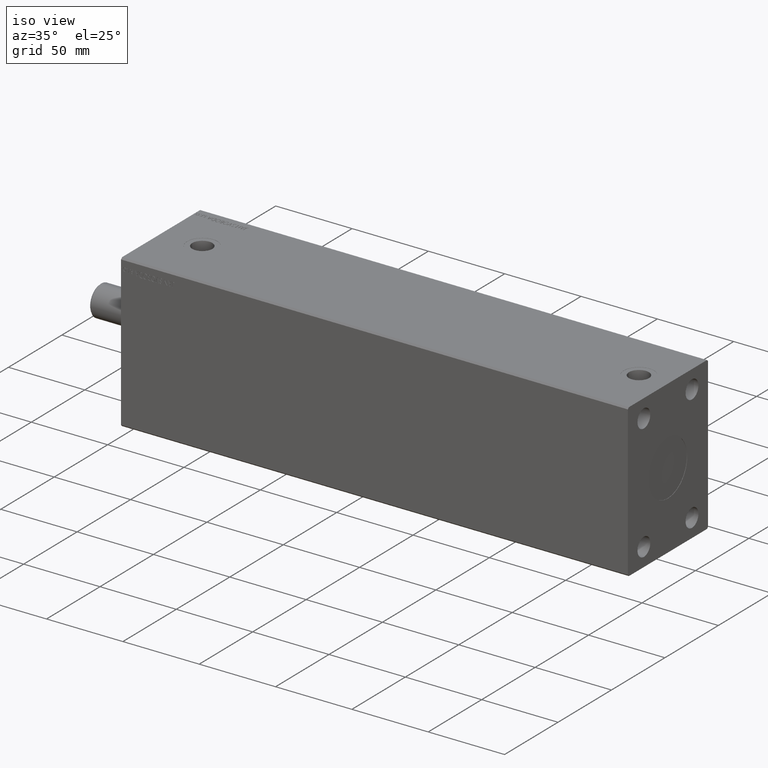
[diagram: clean part render]
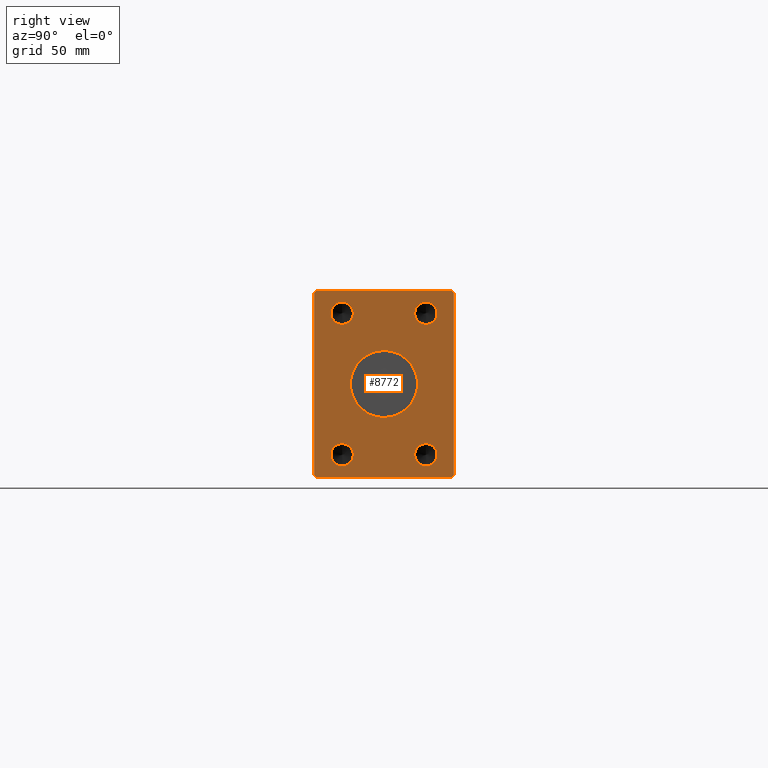
[diagram: tour spotlight — one face highlighted and labeled with its STEP entity id]
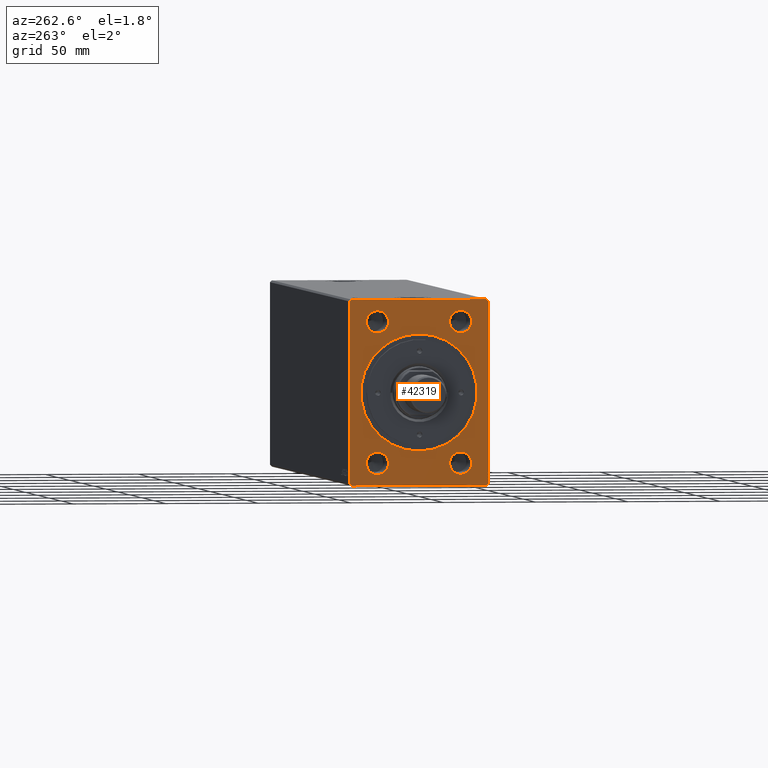
[diagram: tour spotlight — one face highlighted and labeled with its STEP entity id]
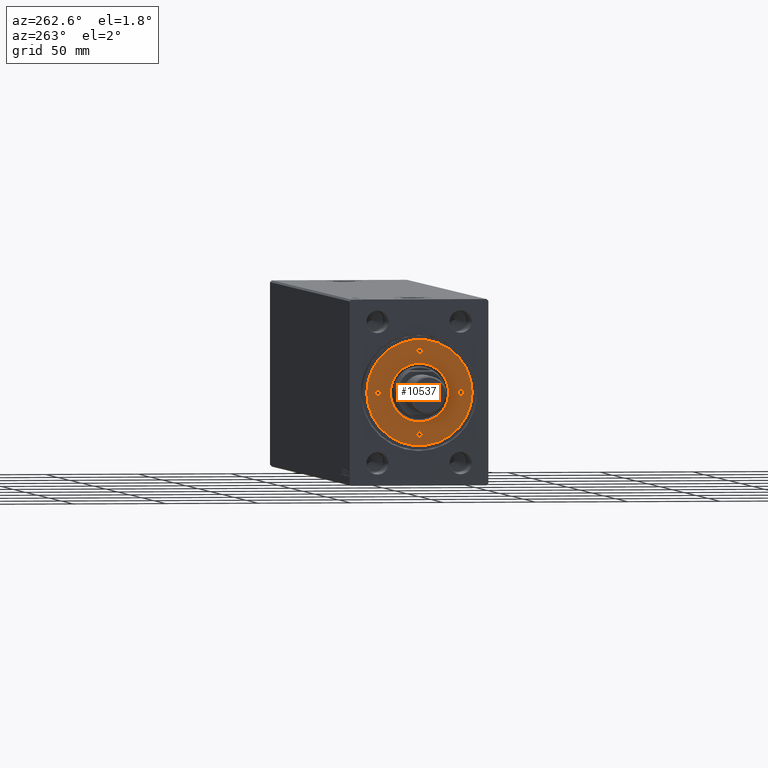
[diagram: tour spotlight — one face highlighted and labeled with its STEP entity id]
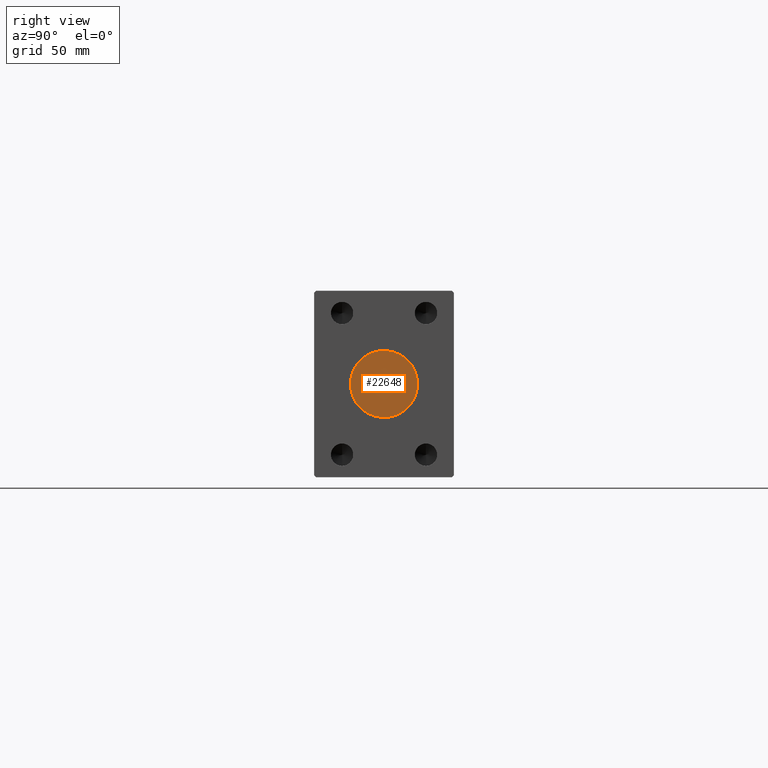
[diagram: tour spotlight — one face highlighted and labeled with its STEP entity id]
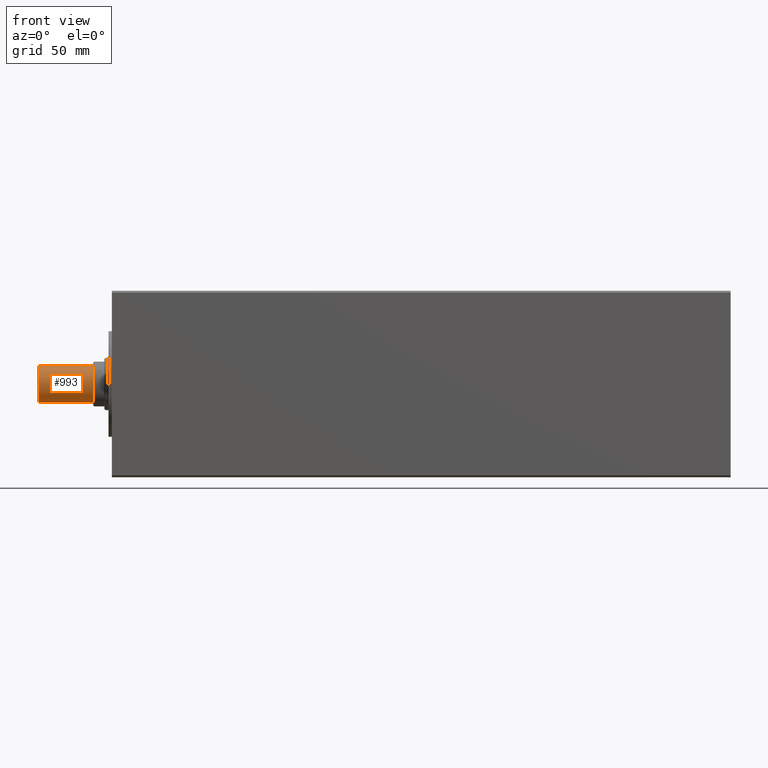
[diagram: tour spotlight — one face highlighted and labeled with its STEP entity id]
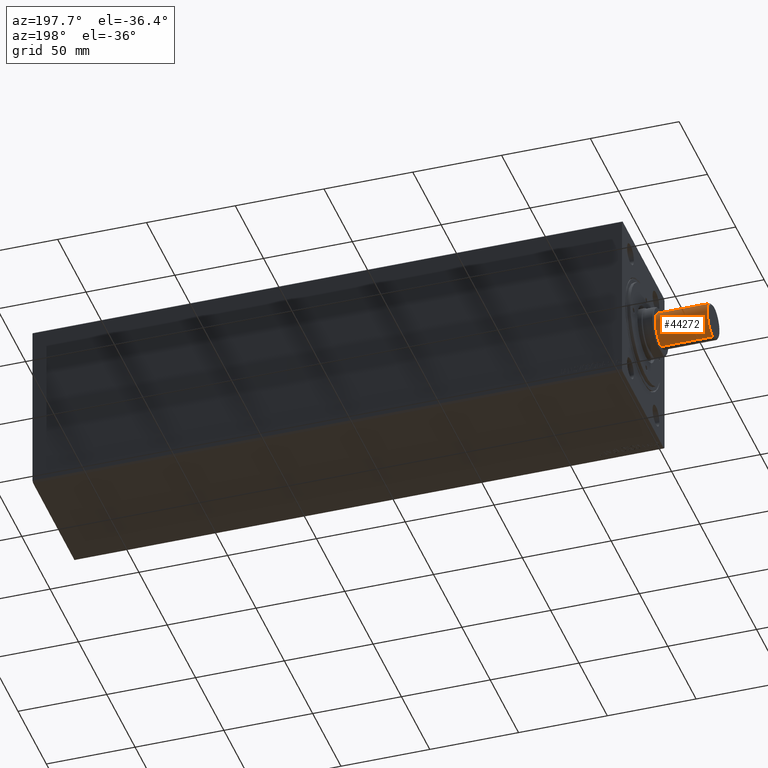
[diagram: tour spotlight — one face highlighted and labeled with its STEP entity id]
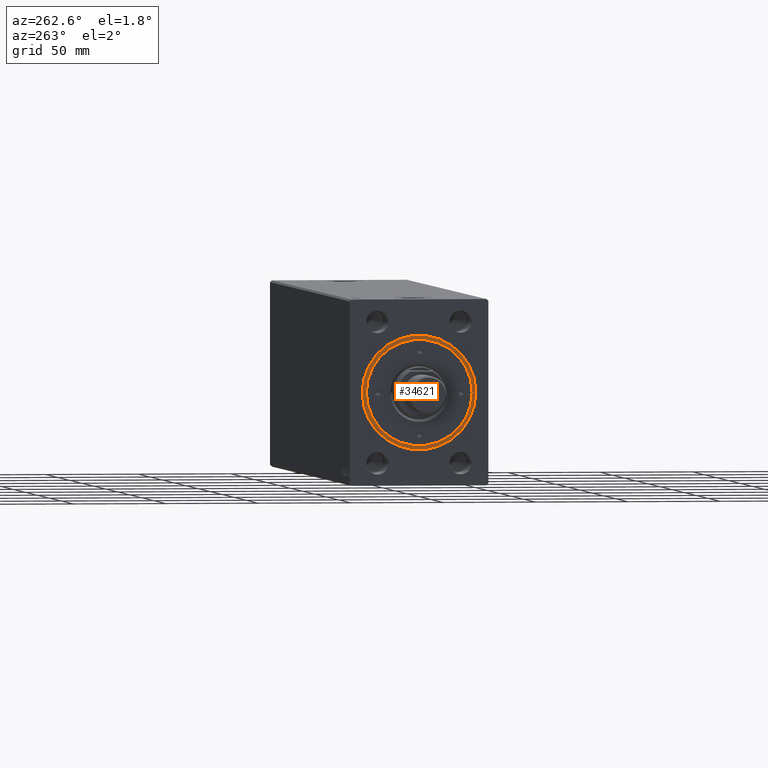
[diagram: tour spotlight — one face highlighted and labeled with its STEP entity id]
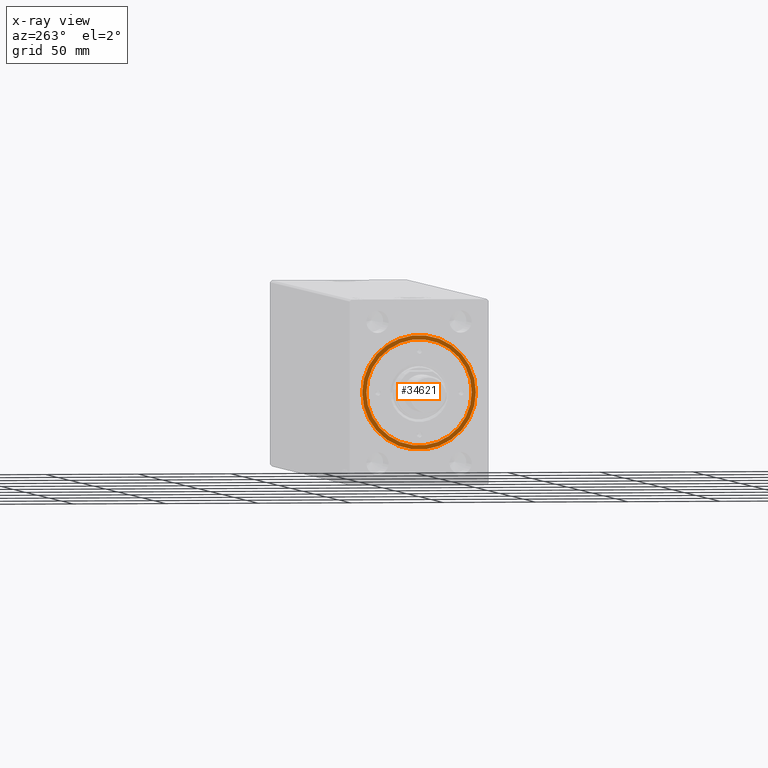
[diagram: x-ray of the same camera — body ghosted, this tour face saturated]
A machine part: a face-by-face anatomy tour. The part has 879 B-rep faces; the first image is the clean iso view, then the 7 largest visible faces are spotlighted one at a time (largest first), each with its STEP entity span.

Face 1 — right view, entity #8772. In plain terms, the highlighted planar face has unit normal (1, 0, 0).
Definition (entity closure, byte-faithful):
#558 = DIRECTION ( 'NONE',  ( 0.000000000000000000, -0.7071067811865474617, -0.7071067811865474617 ) ) ;
#779 = EDGE_CURVE ( 'NONE', #2966, #4572, #15298, .T. ) ;
#835 = CARTESIAN_POINT ( 'NONE',  ( 332.0000000000000000, -22.50000000000000000, 32.00000000000000000 ) ) ;
#1179 = VECTOR ( 'NONE', #7562, 1000.000000000000114 ) ;
#1397 = CIRCLE ( 'NONE', #33618, 18.00000000000000000 ) ;
#1464 = DIRECTION ( 'NONE',  ( 0.000000000000000000, 0.000000000000000000, -1.000000000000000000 ) ) ;
#2029 = CARTESIAN_POINT ( 'NONE',  ( 332.0000000000000000, 37.50000000000000711, -49.00000000000000000 ) ) ;
#2045 = EDGE_CURVE ( 'NONE', #38311, #20236, #17478, .T. ) ;
#2544 = AXIS2_PLACEMENT_3D ( 'NONE', #37457, #24663, #20876 ) ;
#2966 = VERTEX_POINT ( 'NONE', #23134 ) ;
#3005 = VECTOR ( 'NONE', #37088, 1000.000000000000000 ) ;
#3010 = LINE ( 'NONE', #3221, #31453 ) ;
#3162 = CARTESIAN_POINT ( 'NONE',  ( 332.0000000000000000, -22.50000000000000000, -32.00000000000000711 ) ) ;
#3221 = CARTESIAN_POINT ( 'NONE',  ( 332.0000000000000000, 36.50000000000000711, 50.00000000000000000 ) ) ;
#3379 = ORIENTED_EDGE ( 'NONE', *, *, #43029, .T. ) ;
#3412 = FACE_BOUND ( 'NONE', #41078, .T. ) ;
#3633 = DIRECTION ( 'NONE',  ( 0.000000000000000000, 0.000000000000000000, -1.000000000000000000 ) ) ;
#3825 = ORIENTED_EDGE ( 'NONE', *, *, #7319, .T. ) ;
#3857 = EDGE_CURVE ( 'NONE', #30267, #14996, #33307, .T. ) ;
#3928 = CARTESIAN_POINT ( 'NONE',  ( 332.0000000000000000, 0.000000000000000000, 0.000000000000000000 ) ) ;
#3942 = ORIENTED_EDGE ( 'NONE', *, *, #779, .F. ) ;
#3993 = CARTESIAN_POINT ( 'NONE',  ( 332.0000000000000000, 37.50000000000000711, 49.00000000000000000 ) ) ;
#4116 = CARTESIAN_POINT ( 'NONE',  ( 332.0000000000000000, 36.50000000000000711, 50.00000000000000000 ) ) ;
#4572 = VERTEX_POINT ( 'NONE', #7563 ) ;
#4987 = DIRECTION ( 'NONE',  ( 0.000000000000000000, 0.000000000000000000, -1.000000000000000000 ) ) ;
#5064 = CARTESIAN_POINT ( 'NONE',  ( 332.0000000000000000, -22.50000000000000000, 38.00000000000000000 ) ) ;
#5067 = LINE ( 'NONE', #5286, #38441 ) ;
#5130 = AXIS2_PLACEMENT_3D ( 'NONE', #42023, #38231, #27701 ) ;
#5286 = CARTESIAN_POINT ( 'NONE',  ( 332.0000000000000000, -37.50000000000001421, 48.99999999999998579 ) ) ;
#6079 = ORIENTED_EDGE ( 'NONE', *, *, #2045, .F. ) ;
#6180 = DIRECTION ( 'NONE',  ( 0.000000000000000000, 0.000000000000000000, -1.000000000000000000 ) ) ;
#6258 = CARTESIAN_POINT ( 'NONE',  ( 332.0000000000000000, 22.50000000000000000, -38.00000000000000000 ) ) ;
#7319 = EDGE_CURVE ( 'NONE', #15618, #19843, #21242, .T. ) ;
#7387 = ORIENTED_EDGE ( 'NONE', *, *, #9225, .T. ) ;
#7404 = ORIENTED_EDGE ( 'NONE', *, *, #35841, .F. ) ;
#7562 = DIRECTION ( 'NONE',  ( 0.000000000000000000, -0.7071067811865474617, 0.7071067811865474617 ) ) ;
#7563 = CARTESIAN_POINT ( 'NONE',  ( 332.0000000000000000, 0.000000000000000000, -18.00000000000000000 ) ) ;
#8281 = VECTOR ( 'NONE', #39922, 1000.000000000000114 ) ;
#8395 = VERTEX_POINT ( 'NONE', #21865 ) ;
#8704 = AXIS2_PLACEMENT_3D ( 'NONE', #5064, #18719, #23858 ) ;
#8772 = ADVANCED_FACE ( 'NONE', ( #21091, #30742, #3412, #34986, #17493, #31395 ), #13696, .T. ) ;
#8802 = CARTESIAN_POINT ( 'NONE',  ( 332.0000000000000000, 22.50000000000000000, -38.00000000000000000 ) ) ;
#9210 = CIRCLE ( 'NONE', #12787, 5.999999999999998224 ) ;
#9225 = EDGE_CURVE ( 'NONE', #16499, #33193, #5067, .T. ) ;
#10193 = LINE ( 'NONE', #11059, #33685 ) ;
#10246 = EDGE_LOOP ( 'NONE', ( #33572, #18981 ) ) ;
#10298 = CARTESIAN_POINT ( 'NONE',  ( 332.0000000000000000, 22.50000000000000000, -44.00000000000000000 ) ) ;
#10433 = DIRECTION ( 'NONE',  ( 1.000000000000000000, 0.000000000000000000, 0.000000000000000000 ) ) ;
#11059 = CARTESIAN_POINT ( 'NONE',  ( 332.0000000000000000, -36.50000000000001421, 49.99999999999998579 ) ) ;
#11275 = EDGE_CURVE ( 'NONE', #19443, #8395, #9210, .T. ) ;
#11600 = CARTESIAN_POINT ( 'NONE',  ( 332.0000000000000000, 22.50000000000000000, -32.00000000000000000 ) ) ;
#12133 = VERTEX_POINT ( 'NONE', #33611 ) ;
#12787 = AXIS2_PLACEMENT_3D ( 'NONE', #42232, #32592, #1464 ) ;
#12882 = CARTESIAN_POINT ( 'NONE',  ( 332.0000000000000000, -36.50000000000000711, -50.00000000000000000 ) ) ;
#13491 = CIRCLE ( 'NONE', #37923, 5.999999999999998224 ) ;
#13696 = PLANE ( 'NONE',  #17667 ) ;
#14996 = VERTEX_POINT ( 'NONE', #3162 ) ;
#15044 = CARTESIAN_POINT ( 'NONE',  ( 332.0000000000000000, -22.50000000000000000, 38.00000000000000000 ) ) ;
#15273 = EDGE_CURVE ( 'NONE', #8395, #19443, #17757, .T. ) ;
#15298 = CIRCLE ( 'NONE', #20322, 18.00000000000000000 ) ;
#15385 = ORIENTED_EDGE ( 'NONE', *, *, #20569, .T. ) ;
#15618 = VERTEX_POINT ( 'NONE', #18446 ) ;
#15666 = DIRECTION ( 'NONE',  ( 0.000000000000000000, 0.000000000000000000, 1.000000000000000000 ) ) ;
#15711 = LINE ( 'NONE', #23131, #8281 ) ;
#16141 = VERTEX_POINT ( 'NONE', #10298 ) ;
#16252 = VECTOR ( 'NONE', #15666, 1000.000000000000000 ) ;
#16499 = VERTEX_POINT ( 'NONE', #22115 ) ;
#16575 = CIRCLE ( 'NONE', #8704, 5.999999999999998224 ) ;
#17373 = EDGE_LOOP ( 'NONE', ( #6079, #18387 ) ) ;
#17478 = CIRCLE ( 'NONE', #26808, 5.999999999999998224 ) ;
#17493 = FACE_BOUND ( 'NONE', #17373, .T. ) ;
#17667 = AXIS2_PLACEMENT_3D ( 'NONE', #27809, #37458, #3633 ) ;
#17757 = CIRCLE ( 'NONE', #30673, 5.999999999999998224 ) ;
#18367 = ORIENTED_EDGE ( 'NONE', *, *, #11275, .F. ) ;
#18387 = ORIENTED_EDGE ( 'NONE', *, *, #42960, .F. ) ;
#18446 = CARTESIAN_POINT ( 'NONE',  ( 332.0000000000000000, 37.50000000000000711, 49.00000000000000000 ) ) ;
#18719 = DIRECTION ( 'NONE',  ( 1.000000000000000000, -0.000000000000000000, -0.000000000000000000 ) ) ;
#18939 = DIRECTION ( 'NONE',  ( 0.000000000000000000, 0.000000000000000000, -1.000000000000000000 ) ) ;
#18981 = ORIENTED_EDGE ( 'NONE', *, *, #19922, .F. ) ;
#19096 = DIRECTION ( 'NONE',  ( 0.000000000000000000, 0.000000000000000000, -1.000000000000000000 ) ) ;
#19443 = VERTEX_POINT ( 'NONE', #29975 ) ;
#19516 = LINE ( 'NONE', #27123, #30723 ) ;
#19843 = VERTEX_POINT ( 'NONE', #4116 ) ;
#19922 = EDGE_CURVE ( 'NONE', #36786, #16141, #36534, .T. ) ;
#20230 = CARTESIAN_POINT ( 'NONE',  ( 332.0000000000000000, -22.50000000000000000, -44.00000000000000711 ) ) ;
#20236 = VERTEX_POINT ( 'NONE', #43881 ) ;
#20322 = AXIS2_PLACEMENT_3D ( 'NONE', #3928, #28114, #41771 ) ;
#20569 = EDGE_CURVE ( 'NONE', #27847, #12133, #15711, .T. ) ;
#20876 = DIRECTION ( 'NONE',  ( 0.000000000000000000, 0.000000000000000000, -1.000000000000000000 ) ) ;
#21091 = FACE_BOUND ( 'NONE', #26251, .T. ) ;
#21242 = LINE ( 'NONE', #3993, #1179 ) ;
#21865 = CARTESIAN_POINT ( 'NONE',  ( 332.0000000000000000, 22.50000000000000000, 32.00000000000000000 ) ) ;
#22115 = CARTESIAN_POINT ( 'NONE',  ( 332.0000000000000000, -37.50000000000001421, 48.99999999999998579 ) ) ;
#23131 = CARTESIAN_POINT ( 'NONE',  ( 332.0000000000000000, 36.50000000000000711, -50.00000000000000000 ) ) ;
#23134 = CARTESIAN_POINT ( 'NONE',  ( 332.0000000000000000, 2.204364238465235428E-15, 18.00000000000000000 ) ) ;
#23736 = DIRECTION ( 'NONE',  ( 0.000000000000000000, 0.000000000000000000, -1.000000000000000000 ) ) ;
#23858 = DIRECTION ( 'NONE',  ( 0.000000000000000000, 0.000000000000000000, -1.000000000000000000 ) ) ;
#24332 = CARTESIAN_POINT ( 'NONE',  ( 332.0000000000000000, 0.000000000000000000, 0.000000000000000000 ) ) ;
#24441 = CIRCLE ( 'NONE', #5130, 5.999999999999998224 ) ;
#24663 = DIRECTION ( 'NONE',  ( 1.000000000000000000, -0.000000000000000000, -0.000000000000000000 ) ) ;
#25332 = ORIENTED_EDGE ( 'NONE', *, *, #26033, .T. ) ;
#26033 = EDGE_CURVE ( 'NONE', #12133, #15618, #32056, .T. ) ;
#26040 = ORIENTED_EDGE ( 'NONE', *, *, #3857, .F. ) ;
#26251 = EDGE_LOOP ( 'NONE', ( #7404, #3942 ) ) ;
#26808 = AXIS2_PLACEMENT_3D ( 'NONE', #15044, #36513, #4987 ) ;
#27123 = CARTESIAN_POINT ( 'NONE',  ( 332.0000000000000000, -37.50000000000001421, -49.00000000000000000 ) ) ;
#27701 = DIRECTION ( 'NONE',  ( 0.000000000000000000, 0.000000000000000000, -1.000000000000000000 ) ) ;
#27809 = CARTESIAN_POINT ( 'NONE',  ( 332.0000000000000000, 0.000000000000000000, 0.000000000000000000 ) ) ;
#27847 = VERTEX_POINT ( 'NONE', #31952 ) ;
#28114 = DIRECTION ( 'NONE',  ( 1.000000000000000000, 0.000000000000000000, 0.000000000000000000 ) ) ;
#28265 = ORIENTED_EDGE ( 'NONE', *, *, #30694, .T. ) ;
#29938 = CARTESIAN_POINT ( 'NONE',  ( 332.0000000000000000, 22.50000000000000000, 38.00000000000000000 ) ) ;
#29975 = CARTESIAN_POINT ( 'NONE',  ( 332.0000000000000000, 22.50000000000000000, 44.00000000000000000 ) ) ;
#30146 = EDGE_LOOP ( 'NONE', ( #3825, #42976, #42109, #7387, #28265, #3379, #15385, #25332 ) ) ;
#30267 = VERTEX_POINT ( 'NONE', #20230 ) ;
#30454 = DIRECTION ( 'NONE',  ( 1.000000000000000000, -0.000000000000000000, -0.000000000000000000 ) ) ;
#30673 = AXIS2_PLACEMENT_3D ( 'NONE', #29938, #36876, #6180 ) ;
#30694 = EDGE_CURVE ( 'NONE', #33193, #36776, #19516, .T. ) ;
#30723 = VECTOR ( 'NONE', #34079, 1000.000000000000114 ) ;
#30742 = FACE_BOUND ( 'NONE', #31482, .T. ) ;
#31395 = FACE_OUTER_BOUND ( 'NONE', #30146, .T. ) ;
#31453 = VECTOR ( 'NONE', #33706, 1000.000000000000000 ) ;
#31482 = EDGE_LOOP ( 'NONE', ( #37037, #18367 ) ) ;
#31751 = EDGE_CURVE ( 'NONE', #19843, #40843, #3010, .T. ) ;
#31952 = CARTESIAN_POINT ( 'NONE',  ( 332.0000000000000000, 36.50000000000000711, -50.00000000000000000 ) ) ;
#32056 = LINE ( 'NONE', #2029, #16252 ) ;
#32481 = ORIENTED_EDGE ( 'NONE', *, *, #42849, .F. ) ;
#32592 = DIRECTION ( 'NONE',  ( 1.000000000000000000, -0.000000000000000000, -0.000000000000000000 ) ) ;
#32958 = AXIS2_PLACEMENT_3D ( 'NONE', #8802, #36137, #19096 ) ;
#33071 = EDGE_CURVE ( 'NONE', #16141, #36786, #13491, .T. ) ;
#33166 = DIRECTION ( 'NONE',  ( 0.000000000000000000, 0.000000000000000000, -1.000000000000000000 ) ) ;
#33193 = VERTEX_POINT ( 'NONE', #41847 ) ;
#33288 = LINE ( 'NONE', #12882, #3005 ) ;
#33307 = CIRCLE ( 'NONE', #2544, 5.999999999999998224 ) ;
#33572 = ORIENTED_EDGE ( 'NONE', *, *, #33071, .F. ) ;
#33611 = CARTESIAN_POINT ( 'NONE',  ( 332.0000000000000000, 37.50000000000000711, -49.00000000000000000 ) ) ;
#33618 = AXIS2_PLACEMENT_3D ( 'NONE', #24332, #10433, #33166 ) ;
#33685 = VECTOR ( 'NONE', #558, 1000.000000000000114 ) ;
#33706 = DIRECTION ( 'NONE',  ( 0.000000000000000000, -1.000000000000000000, -1.901066822988281457E-16 ) ) ;
#34079 = DIRECTION ( 'NONE',  ( 0.000000000000000000, 0.7071067811865500152, -0.7071067811865451302 ) ) ;
#34986 = FACE_BOUND ( 'NONE', #10246, .T. ) ;
#35349 = CARTESIAN_POINT ( 'NONE',  ( 332.0000000000000000, -36.50000000000001421, 49.99999999999998579 ) ) ;
#35841 = EDGE_CURVE ( 'NONE', #4572, #2966, #1397, .T. ) ;
#36137 = DIRECTION ( 'NONE',  ( 1.000000000000000000, -0.000000000000000000, -0.000000000000000000 ) ) ;
#36513 = DIRECTION ( 'NONE',  ( 1.000000000000000000, -0.000000000000000000, -0.000000000000000000 ) ) ;
#36534 = CIRCLE ( 'NONE', #32958, 5.999999999999998224 ) ;
#36776 = VERTEX_POINT ( 'NONE', #38949 ) ;
#36786 = VERTEX_POINT ( 'NONE', #11600 ) ;
#36876 = DIRECTION ( 'NONE',  ( 1.000000000000000000, -0.000000000000000000, -0.000000000000000000 ) ) ;
#37037 = ORIENTED_EDGE ( 'NONE', *, *, #15273, .F. ) ;
#37088 = DIRECTION ( 'NONE',  ( 0.000000000000000000, 1.000000000000000000, 0.000000000000000000 ) ) ;
#37457 = CARTESIAN_POINT ( 'NONE',  ( 332.0000000000000000, -22.50000000000000000, -38.00000000000000711 ) ) ;
#37458 = DIRECTION ( 'NONE',  ( 1.000000000000000000, 0.000000000000000000, 0.000000000000000000 ) ) ;
#37923 = AXIS2_PLACEMENT_3D ( 'NONE', #6258, #30454, #23736 ) ;
#38231 = DIRECTION ( 'NONE',  ( 1.000000000000000000, -0.000000000000000000, -0.000000000000000000 ) ) ;
#38311 = VERTEX_POINT ( 'NONE', #835 ) ;
#38441 = VECTOR ( 'NONE', #18939, 1000.000000000000000 ) ;
#38568 = EDGE_CURVE ( 'NONE', #40843, #16499, #10193, .T. ) ;
#38949 = CARTESIAN_POINT ( 'NONE',  ( 332.0000000000000000, -36.50000000000000711, -50.00000000000000000 ) ) ;
#39922 = DIRECTION ( 'NONE',  ( 0.000000000000000000, 0.7071067811865474617, 0.7071067811865474617 ) ) ;
#40843 = VERTEX_POINT ( 'NONE', #35349 ) ;
#41078 = EDGE_LOOP ( 'NONE', ( #26040, #32481 ) ) ;
#41771 = DIRECTION ( 'NONE',  ( 0.000000000000000000, 0.000000000000000000, -1.000000000000000000 ) ) ;
#41847 = CARTESIAN_POINT ( 'NONE',  ( 332.0000000000000000, -37.50000000000001421, -49.00000000000000000 ) ) ;
#42023 = CARTESIAN_POINT ( 'NONE',  ( 332.0000000000000000, -22.50000000000000000, -38.00000000000000711 ) ) ;
#42109 = ORIENTED_EDGE ( 'NONE', *, *, #38568, .T. ) ;
#42232 = CARTESIAN_POINT ( 'NONE',  ( 332.0000000000000000, 22.50000000000000000, 38.00000000000000000 ) ) ;
#42849 = EDGE_CURVE ( 'NONE', #14996, #30267, #24441, .T. ) ;
#42960 = EDGE_CURVE ( 'NONE', #20236, #38311, #16575, .T. ) ;
#42976 = ORIENTED_EDGE ( 'NONE', *, *, #31751, .T. ) ;
#43029 = EDGE_CURVE ( 'NONE', #36776, #27847, #33288, .T. ) ;
#43881 = CARTESIAN_POINT ( 'NONE',  ( 332.0000000000000000, -22.50000000000000000, 44.00000000000000000 ) ) ;

Face 2 — auxiliary view, entity #42319. In plain terms, the highlighted planar face has unit normal (1, 0, 0).
Definition (entity closure, byte-faithful):
#27 = EDGE_CURVE ( 'NONE', #21029, #11809, #895, .T. ) ;
#171 = VERTEX_POINT ( 'NONE', #32694 ) ;
#531 = FACE_BOUND ( 'NONE', #42029, .T. ) ;
#895 = LINE ( 'NONE', #28008, #17451 ) ;
#973 = VERTEX_POINT ( 'NONE', #16430 ) ;
#1718 = LINE ( 'NONE', #42927, #15419 ) ;
#1759 = CARTESIAN_POINT ( 'NONE',  ( 0.000000000000000000, 37.50000000000000711, 49.00000000000000000 ) ) ;
#1984 = LINE ( 'NONE', #25503, #36357 ) ;
#2692 = AXIS2_PLACEMENT_3D ( 'NONE', #24217, #34752, #4050 ) ;
#3191 = CARTESIAN_POINT ( 'NONE',  ( 0.000000000000000000, 37.50000000000000711, 49.00000000000000000 ) ) ;
#3340 = EDGE_CURVE ( 'NONE', #39808, #38376, #14648, .T. ) ;
#3582 = DIRECTION ( 'NONE',  ( -1.000000000000000000, -0.000000000000000000, -0.000000000000000000 ) ) ;
#3812 = ORIENTED_EDGE ( 'NONE', *, *, #36593, .F. ) ;
#3889 = EDGE_CURVE ( 'NONE', #25701, #34425, #12523, .T. ) ;
#3953 = CARTESIAN_POINT ( 'NONE',  ( 0.000000000000000000, -36.50000000000001421, 49.99999999999998579 ) ) ;
#3956 = CARTESIAN_POINT ( 'NONE',  ( 0.000000000000000000, 37.50000000000000711, -49.00000000000000000 ) ) ;
#4050 = DIRECTION ( 'NONE',  ( 0.000000000000000000, 0.000000000000000000, 1.000000000000000000 ) ) ;
#4329 = FACE_OUTER_BOUND ( 'NONE', #38786, .T. ) ;
#4738 = CARTESIAN_POINT ( 'NONE',  ( 0.000000000000000000, 36.50000000000000711, -50.00000000000000000 ) ) ;
#4852 = DIRECTION ( 'NONE',  ( 0.000000000000000000, 0.7071067811865500152, -0.7071067811865451302 ) ) ;
#5686 = EDGE_CURVE ( 'NONE', #973, #17330, #7970, .T. ) ;
#5887 = DIRECTION ( 'NONE',  ( 0.000000000000000000, 0.000000000000000000, -1.000000000000000000 ) ) ;
#6115 = AXIS2_PLACEMENT_3D ( 'NONE', #28708, #12099, #18380 ) ;
#6337 = CIRCLE ( 'NONE', #34958, 5.999999999999998224 ) ;
#6570 = AXIS2_PLACEMENT_3D ( 'NONE', #31657, #7246, #38383 ) ;
#6966 = LINE ( 'NONE', #3191, #39967 ) ;
#7246 = DIRECTION ( 'NONE',  ( 1.000000000000000000, 0.000000000000000000, 0.000000000000000000 ) ) ;
#7970 = LINE ( 'NONE', #3953, #27594 ) ;
#8210 = CARTESIAN_POINT ( 'NONE',  ( 0.000000000000000000, -37.50000000000001421, -49.00000000000000000 ) ) ;
#8305 = CARTESIAN_POINT ( 'NONE',  ( 2.449293598294703949E-16, 22.50000000000000000, -44.00000000000000000 ) ) ;
#8319 = LINE ( 'NONE', #4738, #32077 ) ;
#8558 = LINE ( 'NONE', #35447, #14907 ) ;
#8846 = DIRECTION ( 'NONE',  ( 0.000000000000000000, 0.000000000000000000, 1.000000000000000000 ) ) ;
#9241 = VERTEX_POINT ( 'NONE', #11984 ) ;
#9342 = EDGE_CURVE ( 'NONE', #34425, #25701, #19112, .T. ) ;
#9824 = DIRECTION ( 'NONE',  ( -1.000000000000000000, -0.000000000000000000, -0.000000000000000000 ) ) ;
#9849 = CARTESIAN_POINT ( 'NONE',  ( 2.449293598294703949E-16, -22.50000000000000000, 38.00000000000000000 ) ) ;
#10442 = DIRECTION ( 'NONE',  ( 0.000000000000000000, -0.7071067811865474617, -0.7071067811865474617 ) ) ;
#10601 = FACE_BOUND ( 'NONE', #18130, .T. ) ;
#11680 = EDGE_CURVE ( 'NONE', #12087, #18944, #6337, .T. ) ;
#11683 = EDGE_CURVE ( 'NONE', #17330, #40521, #8558, .T. ) ;
#11809 = VERTEX_POINT ( 'NONE', #16600 ) ;
#11845 = ORIENTED_EDGE ( 'NONE', *, *, #11680, .F. ) ;
#11984 = CARTESIAN_POINT ( 'NONE',  ( 2.449293598294703949E-16, -22.50000000000000000, 32.00000000000000000 ) ) ;
#12087 = VERTEX_POINT ( 'NONE', #12974 ) ;
#12099 = DIRECTION ( 'NONE',  ( -1.000000000000000000, -0.000000000000000000, -0.000000000000000000 ) ) ;
#12216 = DIRECTION ( 'NONE',  ( 0.000000000000000000, -1.000000000000000000, -1.901066822988281457E-16 ) ) ;
#12523 = CIRCLE ( 'NONE', #6115, 5.999999999999998224 ) ;
#12789 = ORIENTED_EDGE ( 'NONE', *, *, #34273, .F. ) ;
#12886 = CARTESIAN_POINT ( 'NONE',  ( 2.449293598294703949E-16, 22.50000000000000000, 38.00000000000000000 ) ) ;
#12974 = CARTESIAN_POINT ( 'NONE',  ( 2.449293598294703949E-16, 22.50000000000000000, -32.00000000000000000 ) ) ;
#13826 = EDGE_CURVE ( 'NONE', #36889, #28966, #1984, .T. ) ;
#14333 = ORIENTED_EDGE ( 'NONE', *, *, #14700, .F. ) ;
#14648 = CIRCLE ( 'NONE', #39720, 5.999999999999998224 ) ;
#14700 = EDGE_CURVE ( 'NONE', #11809, #36889, #8319, .T. ) ;
#14907 = VECTOR ( 'NONE', #22451, 1000.000000000000000 ) ;
#15116 = EDGE_CURVE ( 'NONE', #21463, #34495, #15609, .T. ) ;
#15396 = EDGE_CURVE ( 'NONE', #28966, #171, #6966, .T. ) ;
#15419 = VECTOR ( 'NONE', #12216, 1000.000000000000000 ) ;
#15609 = CIRCLE ( 'NONE', #39244, 31.45000000000008811 ) ;
#15665 = CIRCLE ( 'NONE', #39294, 5.999999999999998224 ) ;
#15777 = CARTESIAN_POINT ( 'NONE',  ( 2.449293598294703949E-16, -22.50000000000000000, -38.00000000000000711 ) ) ;
#16209 = ORIENTED_EDGE ( 'NONE', *, *, #11683, .F. ) ;
#16430 = CARTESIAN_POINT ( 'NONE',  ( 0.000000000000000000, -36.50000000000001421, 49.99999999999998579 ) ) ;
#16434 = CARTESIAN_POINT ( 'NONE',  ( 0.000000000000000000, 0.000000000000000000, 31.45000000000008811 ) ) ;
#16449 = CIRCLE ( 'NONE', #30784, 5.999999999999998224 ) ;
#16600 = CARTESIAN_POINT ( 'NONE',  ( 0.000000000000000000, 36.50000000000000711, -50.00000000000000000 ) ) ;
#17329 = FACE_BOUND ( 'NONE', #19264, .T. ) ;
#17330 = VERTEX_POINT ( 'NONE', #27017 ) ;
#17451 = VECTOR ( 'NONE', #28223, 1000.000000000000000 ) ;
#17468 = ORIENTED_EDGE ( 'NONE', *, *, #3889, .F. ) ;
#17710 = ORIENTED_EDGE ( 'NONE', *, *, #3340, .F. ) ;
#17795 = CARTESIAN_POINT ( 'NONE',  ( 2.449293598294703949E-16, -22.50000000000000000, -38.00000000000000711 ) ) ;
#18130 = EDGE_LOOP ( 'NONE', ( #3812, #12789 ) ) ;
#18354 = CARTESIAN_POINT ( 'NONE',  ( 0.000000000000000000, -36.50000000000000711, -50.00000000000000000 ) ) ;
#18380 = DIRECTION ( 'NONE',  ( 0.000000000000000000, 0.000000000000000000, 1.000000000000000000 ) ) ;
#18944 = VERTEX_POINT ( 'NONE', #8305 ) ;
#19112 = CIRCLE ( 'NONE', #42015, 5.999999999999998224 ) ;
#19147 = DIRECTION ( 'NONE',  ( -1.000000000000000000, -0.000000000000000000, -0.000000000000000000 ) ) ;
#19173 = DIRECTION ( 'NONE',  ( 0.000000000000000000, 0.000000000000000000, -1.000000000000000000 ) ) ;
#19264 = EDGE_LOOP ( 'NONE', ( #11845, #25513 ) ) ;
#20352 = EDGE_CURVE ( 'NONE', #171, #973, #1718, .T. ) ;
#20650 = DIRECTION ( 'NONE',  ( 0.000000000000000000, -0.7071067811865474617, 0.7071067811865474617 ) ) ;
#20736 = DIRECTION ( 'NONE',  ( -1.000000000000000000, -0.000000000000000000, -0.000000000000000000 ) ) ;
#21029 = VERTEX_POINT ( 'NONE', #18354 ) ;
#21273 = ORIENTED_EDGE ( 'NONE', *, *, #13826, .F. ) ;
#21348 = ORIENTED_EDGE ( 'NONE', *, *, #20352, .F. ) ;
#21358 = FACE_BOUND ( 'NONE', #21541, .T. ) ;
#21422 = CARTESIAN_POINT ( 'NONE',  ( 2.449293598294703949E-16, 22.50000000000000000, 32.00000000000000000 ) ) ;
#21463 = VERTEX_POINT ( 'NONE', #33318 ) ;
#21541 = EDGE_LOOP ( 'NONE', ( #38935, #17468 ) ) ;
#21569 = VERTEX_POINT ( 'NONE', #35293 ) ;
#21668 = LINE ( 'NONE', #8210, #32977 ) ;
#21789 = DIRECTION ( 'NONE',  ( 0.000000000000000000, 0.000000000000000000, 1.000000000000000000 ) ) ;
#22451 = DIRECTION ( 'NONE',  ( 0.000000000000000000, 0.000000000000000000, -1.000000000000000000 ) ) ;
#22546 = CARTESIAN_POINT ( 'NONE',  ( 0.000000000000000000, 0.000000000000000000, 0.000000000000000000 ) ) ;
#23282 = CARTESIAN_POINT ( 'NONE',  ( 2.449293598294703949E-16, -22.50000000000000000, 38.00000000000000000 ) ) ;
#23359 = ORIENTED_EDGE ( 'NONE', *, *, #15396, .F. ) ;
#23440 = CIRCLE ( 'NONE', #2692, 5.999999999999998224 ) ;
#23768 = ORIENTED_EDGE ( 'NONE', *, *, #38393, .F. ) ;
#23941 = CARTESIAN_POINT ( 'NONE',  ( 2.449293598294703949E-16, -22.50000000000000000, -32.00000000000000711 ) ) ;
#24217 = CARTESIAN_POINT ( 'NONE',  ( 2.449293598294703949E-16, 22.50000000000000000, -38.00000000000000000 ) ) ;
#24278 = FACE_BOUND ( 'NONE', #25777, .T. ) ;
#25503 = CARTESIAN_POINT ( 'NONE',  ( 0.000000000000000000, 37.50000000000000711, -49.00000000000000000 ) ) ;
#25513 = ORIENTED_EDGE ( 'NONE', *, *, #25959, .F. ) ;
#25580 = CARTESIAN_POINT ( 'NONE',  ( 2.449293598294703949E-16, 22.50000000000000000, -38.00000000000000000 ) ) ;
#25701 = VERTEX_POINT ( 'NONE', #21422 ) ;
#25777 = EDGE_LOOP ( 'NONE', ( #33771, #26506 ) ) ;
#25959 = EDGE_CURVE ( 'NONE', #18944, #12087, #23440, .T. ) ;
#26506 = ORIENTED_EDGE ( 'NONE', *, *, #15116, .T. ) ;
#26564 = DIRECTION ( 'NONE',  ( -1.000000000000000000, -0.000000000000000000, -0.000000000000000000 ) ) ;
#27017 = CARTESIAN_POINT ( 'NONE',  ( 0.000000000000000000, -37.50000000000001421, 48.99999999999998579 ) ) ;
#27594 = VECTOR ( 'NONE', #10442, 1000.000000000000114 ) ;
#28008 = CARTESIAN_POINT ( 'NONE',  ( 0.000000000000000000, -36.50000000000000711, -50.00000000000000000 ) ) ;
#28056 = CIRCLE ( 'NONE', #37371, 31.45000000000008811 ) ;
#28223 = DIRECTION ( 'NONE',  ( 0.000000000000000000, 1.000000000000000000, 0.000000000000000000 ) ) ;
#28708 = CARTESIAN_POINT ( 'NONE',  ( 2.449293598294703949E-16, 22.50000000000000000, 38.00000000000000000 ) ) ;
#28966 = VERTEX_POINT ( 'NONE', #1759 ) ;
#29148 = DIRECTION ( 'NONE',  ( 0.000000000000000000, 0.7071067811865474617, 0.7071067811865474617 ) ) ;
#30003 = CARTESIAN_POINT ( 'NONE',  ( 2.449293598294703949E-16, 22.50000000000000000, 44.00000000000000000 ) ) ;
#30465 = DIRECTION ( 'NONE',  ( 0.000000000000000000, 0.000000000000000000, 1.000000000000000000 ) ) ;
#30784 = AXIS2_PLACEMENT_3D ( 'NONE', #9849, #3582, #30465 ) ;
#31657 = CARTESIAN_POINT ( 'NONE',  ( 0.000000000000000000, 0.000000000000000000, 0.000000000000000000 ) ) ;
#32077 = VECTOR ( 'NONE', #29148, 1000.000000000000114 ) ;
#32694 = CARTESIAN_POINT ( 'NONE',  ( 0.000000000000000000, 36.50000000000000711, 50.00000000000000000 ) ) ;
#32950 = ORIENTED_EDGE ( 'NONE', *, *, #27, .F. ) ;
#32977 = VECTOR ( 'NONE', #4852, 1000.000000000000114 ) ;
#32999 = AXIS2_PLACEMENT_3D ( 'NONE', #17795, #20736, #35068 ) ;
#33013 = CARTESIAN_POINT ( 'NONE',  ( 0.000000000000000000, 0.000000000000000000, 0.000000000000000000 ) ) ;
#33318 = CARTESIAN_POINT ( 'NONE',  ( 0.000000000000000000, 3.851514183318435871E-15, -31.45000000000008811 ) ) ;
#33771 = ORIENTED_EDGE ( 'NONE', *, *, #43305, .T. ) ;
#34273 = EDGE_CURVE ( 'NONE', #9241, #21569, #15665, .T. ) ;
#34425 = VERTEX_POINT ( 'NONE', #30003 ) ;
#34454 = ORIENTED_EDGE ( 'NONE', *, *, #39469, .F. ) ;
#34495 = VERTEX_POINT ( 'NONE', #16434 ) ;
#34752 = DIRECTION ( 'NONE',  ( -1.000000000000000000, -0.000000000000000000, -0.000000000000000000 ) ) ;
#34958 = AXIS2_PLACEMENT_3D ( 'NONE', #25580, #41944, #21789 ) ;
#35068 = DIRECTION ( 'NONE',  ( 0.000000000000000000, 0.000000000000000000, 1.000000000000000000 ) ) ;
#35293 = CARTESIAN_POINT ( 'NONE',  ( 2.449293598294703949E-16, -22.50000000000000000, 44.00000000000000000 ) ) ;
#35447 = CARTESIAN_POINT ( 'NONE',  ( 0.000000000000000000, -37.50000000000001421, 48.99999999999998579 ) ) ;
#36207 = DIRECTION ( 'NONE',  ( 1.000000000000000000, 0.000000000000000000, 0.000000000000000000 ) ) ;
#36249 = DIRECTION ( 'NONE',  ( 0.000000000000000000, 0.000000000000000000, 1.000000000000000000 ) ) ;
#36357 = VECTOR ( 'NONE', #36249, 1000.000000000000000 ) ;
#36574 = CIRCLE ( 'NONE', #32999, 5.999999999999998224 ) ;
#36593 = EDGE_CURVE ( 'NONE', #21569, #9241, #16449, .T. ) ;
#36889 = VERTEX_POINT ( 'NONE', #3956 ) ;
#37371 = AXIS2_PLACEMENT_3D ( 'NONE', #33013, #39939, #5887 ) ;
#37952 = PLANE ( 'NONE',  #6570 ) ;
#38376 = VERTEX_POINT ( 'NONE', #39133 ) ;
#38383 = DIRECTION ( 'NONE',  ( 0.000000000000000000, 0.000000000000000000, -1.000000000000000000 ) ) ;
#38393 = EDGE_CURVE ( 'NONE', #40521, #21029, #21668, .T. ) ;
#38786 = EDGE_LOOP ( 'NONE', ( #23359, #21273, #14333, #32950, #23768, #16209, #43170, #21348 ) ) ;
#38935 = ORIENTED_EDGE ( 'NONE', *, *, #9342, .F. ) ;
#39133 = CARTESIAN_POINT ( 'NONE',  ( 2.449293598294703949E-16, -22.50000000000000000, -44.00000000000000711 ) ) ;
#39244 = AXIS2_PLACEMENT_3D ( 'NONE', #22546, #36207, #19173 ) ;
#39294 = AXIS2_PLACEMENT_3D ( 'NONE', #23282, #9824, #43218 ) ;
#39469 = EDGE_CURVE ( 'NONE', #38376, #39808, #36574, .T. ) ;
#39720 = AXIS2_PLACEMENT_3D ( 'NONE', #15777, #19147, #8846 ) ;
#39808 = VERTEX_POINT ( 'NONE', #23941 ) ;
#39939 = DIRECTION ( 'NONE',  ( 1.000000000000000000, 0.000000000000000000, 0.000000000000000000 ) ) ;
#39967 = VECTOR ( 'NONE', #20650, 1000.000000000000114 ) ;
#40233 = DIRECTION ( 'NONE',  ( 0.000000000000000000, 0.000000000000000000, 1.000000000000000000 ) ) ;
#40521 = VERTEX_POINT ( 'NONE', #42397 ) ;
#41944 = DIRECTION ( 'NONE',  ( -1.000000000000000000, -0.000000000000000000, -0.000000000000000000 ) ) ;
#42015 = AXIS2_PLACEMENT_3D ( 'NONE', #12886, #26564, #40233 ) ;
#42029 = EDGE_LOOP ( 'NONE', ( #17710, #34454 ) ) ;
#42319 = ADVANCED_FACE ( 'NONE', ( #21358, #531, #17329, #10601, #24278, #4329 ), #37952, .F. ) ;
#42397 = CARTESIAN_POINT ( 'NONE',  ( 0.000000000000000000, -37.50000000000001421, -49.00000000000000000 ) ) ;
#42927 = CARTESIAN_POINT ( 'NONE',  ( 0.000000000000000000, 36.50000000000000711, 50.00000000000000000 ) ) ;
#43170 = ORIENTED_EDGE ( 'NONE', *, *, #5686, .F. ) ;
#43218 = DIRECTION ( 'NONE',  ( 0.000000000000000000, 0.000000000000000000, 1.000000000000000000 ) ) ;
#43305 = EDGE_CURVE ( 'NONE', #34495, #21463, #28056, .T. ) ;

Face 3 — auxiliary view, entity #10537. In plain terms, the highlighted planar face has unit normal (-1, 0, 0).
Definition (entity closure, byte-faithful):
#570 = CIRCLE ( 'NONE', #25603, 1.499999999999996891 ) ;
#714 = VERTEX_POINT ( 'NONE', #20737 ) ;
#1151 = AXIS2_PLACEMENT_3D ( 'NONE', #2258, #36525, #32714 ) ;
#1186 = CARTESIAN_POINT ( 'NONE',  ( 0.000000000000000000, 0.000000000000000000, 83.79999999999999716 ) ) ;
#1790 = CARTESIAN_POINT ( 'NONE',  ( 22.50000000000000000, 0.000000000000000000, 83.79999999999999716 ) ) ;
#1988 = CARTESIAN_POINT ( 'NONE',  ( -15.79999999999997407, 1.934941942652814473E-15, 83.79999999999999716 ) ) ;
#2258 = CARTESIAN_POINT ( 'NONE',  ( -22.50000000000000000, 0.000000000000000000, 83.79999999999999716 ) ) ;
#2373 = DIRECTION ( 'NONE',  ( 1.000000000000000000, 0.000000000000000000, 0.000000000000000000 ) ) ;
#2486 = DIRECTION ( 'NONE',  ( 0.000000000000000000, 0.000000000000000000, 1.000000000000000000 ) ) ;
#2493 = EDGE_CURVE ( 'NONE', #20739, #27807, #16811, .T. ) ;
#2685 = CARTESIAN_POINT ( 'NONE',  ( 21.00000000000000000, 1.836970198721027222E-16, 83.79999999999999716 ) ) ;
#2709 = DIRECTION ( 'NONE',  ( 1.000000000000000000, 0.000000000000000000, 0.000000000000000000 ) ) ;
#3429 = DIRECTION ( 'NONE',  ( -0.000000000000000000, -0.000000000000000000, 1.000000000000000000 ) ) ;
#3490 = AXIS2_PLACEMENT_3D ( 'NONE', #1790, #29116, #19253 ) ;
#3884 = VERTEX_POINT ( 'NONE', #42803 ) ;
#3997 = CIRCLE ( 'NONE', #1151, 1.499999999999997780 ) ;
#5167 = EDGE_CURVE ( 'NONE', #37124, #36263, #3997, .T. ) ;
#5690 = FACE_BOUND ( 'NONE', #16840, .T. ) ;
#5692 = CARTESIAN_POINT ( 'NONE',  ( -28.50000000000000000, 0.000000000000000000, 83.79999999999999716 ) ) ;
#5864 = DIRECTION ( 'NONE',  ( -0.000000000000000000, -0.000000000000000000, -1.000000000000000000 ) ) ;
#6304 = AXIS2_PLACEMENT_3D ( 'NONE', #19527, #5864, #42827 ) ;
#6567 = CARTESIAN_POINT ( 'NONE',  ( 0.000000000000000000, -22.50000000000000000, 83.79999999999999716 ) ) ;
#6986 = AXIS2_PLACEMENT_3D ( 'NONE', #22998, #13319, #33298 ) ;
#8122 = DIRECTION ( 'NONE',  ( 1.000000000000000000, 0.000000000000000000, 0.000000000000000000 ) ) ;
#10537 = ADVANCED_FACE ( 'NONE', ( #19121, #12847, #26959, #36159, #5690, #33258 ), #12392, .T. ) ;
#10880 = EDGE_CURVE ( 'NONE', #32534, #23901, #18467, .T. ) ;
#11122 = EDGE_CURVE ( 'NONE', #3884, #32265, #41412, .T. ) ;
#11159 = DIRECTION ( 'NONE',  ( 1.000000000000000000, 0.000000000000000000, 0.000000000000000000 ) ) ;
#11437 = EDGE_CURVE ( 'NONE', #714, #17785, #19214, .T. ) ;
#11452 = AXIS2_PLACEMENT_3D ( 'NONE', #12722, #33807, #36931 ) ;
#12098 = ORIENTED_EDGE ( 'NONE', *, *, #38279, .F. ) ;
#12392 = PLANE ( 'NONE',  #24906 ) ;
#12398 = DIRECTION ( 'NONE',  ( 1.000000000000000000, 0.000000000000000000, 0.000000000000000000 ) ) ;
#12402 = EDGE_LOOP ( 'NONE', ( #18519, #23714 ) ) ;
#12620 = DIRECTION ( 'NONE',  ( 0.000000000000000000, 0.000000000000000000, 1.000000000000000000 ) ) ;
#12722 = CARTESIAN_POINT ( 'NONE',  ( -22.50000000000000000, 0.000000000000000000, 83.79999999999999716 ) ) ;
#12847 = FACE_BOUND ( 'NONE', #16056, .T. ) ;
#13171 = EDGE_CURVE ( 'NONE', #31315, #15347, #44205, .T. ) ;
#13199 = ORIENTED_EDGE ( 'NONE', *, *, #11122, .F. ) ;
#13319 = DIRECTION ( 'NONE',  ( -0.000000000000000000, -0.000000000000000000, 1.000000000000000000 ) ) ;
#13425 = CIRCLE ( 'NONE', #42756, 28.50000000000000000 ) ;
#13736 = EDGE_CURVE ( 'NONE', #15347, #31315, #570, .T. ) ;
#14003 = CARTESIAN_POINT ( 'NONE',  ( 15.79999999999997407, 0.000000000000000000, 83.79999999999999716 ) ) ;
#14144 = EDGE_CURVE ( 'NONE', #32265, #3884, #34928, .T. ) ;
#15086 = CIRCLE ( 'NONE', #21568, 15.79999999999997407 ) ;
#15347 = VERTEX_POINT ( 'NONE', #37752 ) ;
#16056 = EDGE_LOOP ( 'NONE', ( #36038, #17395 ) ) ;
#16095 = ORIENTED_EDGE ( 'NONE', *, *, #14144, .F. ) ;
#16441 = CARTESIAN_POINT ( 'NONE',  ( 0.000000000000000000, -22.50000000000000000, 83.79999999999999716 ) ) ;
#16810 = EDGE_LOOP ( 'NONE', ( #13199, #16095 ) ) ;
#16811 = CIRCLE ( 'NONE', #42567, 28.50000000000000000 ) ;
#16840 = EDGE_LOOP ( 'NONE', ( #44116, #33262 ) ) ;
#17073 = DIRECTION ( 'NONE',  ( 1.000000000000000000, 0.000000000000000000, 0.000000000000000000 ) ) ;
#17374 = CARTESIAN_POINT ( 'NONE',  ( 0.000000000000000000, 0.000000000000000000, 83.79999999999999716 ) ) ;
#17395 = ORIENTED_EDGE ( 'NONE', *, *, #13736, .F. ) ;
#17446 = DIRECTION ( 'NONE',  ( -0.000000000000000000, -0.000000000000000000, 1.000000000000000000 ) ) ;
#17785 = VERTEX_POINT ( 'NONE', #31640 ) ;
#17819 = AXIS2_PLACEMENT_3D ( 'NONE', #6567, #3429, #17073 ) ;
#18191 = DIRECTION ( 'NONE',  ( -0.000000000000000000, -0.000000000000000000, -1.000000000000000000 ) ) ;
#18467 = CIRCLE ( 'NONE', #6304, 15.79999999999997407 ) ;
#18519 = ORIENTED_EDGE ( 'NONE', *, *, #2493, .T. ) ;
#18830 = CARTESIAN_POINT ( 'NONE',  ( -21.00000000000000000, 0.000000000000000000, 83.79999999999999716 ) ) ;
#19090 = EDGE_CURVE ( 'NONE', #27807, #20739, #13425, .T. ) ;
#19121 = FACE_BOUND ( 'NONE', #40903, .T. ) ;
#19214 = CIRCLE ( 'NONE', #37111, 1.499999999999996891 ) ;
#19253 = DIRECTION ( 'NONE',  ( 1.000000000000000000, 0.000000000000000000, 0.000000000000000000 ) ) ;
#19527 = CARTESIAN_POINT ( 'NONE',  ( 0.000000000000000000, 0.000000000000000000, 83.79999999999999716 ) ) ;
#20737 = CARTESIAN_POINT ( 'NONE',  ( 1.499999999999996891, -22.50000000000000000, 83.79999999999999716 ) ) ;
#20739 = VERTEX_POINT ( 'NONE', #5692 ) ;
#21111 = CARTESIAN_POINT ( 'NONE',  ( 1.499999999999996891, 22.50000000000000000, 83.79999999999999716 ) ) ;
#21415 = DIRECTION ( 'NONE',  ( 0.000000000000000000, 0.000000000000000000, 1.000000000000000000 ) ) ;
#21568 = AXIS2_PLACEMENT_3D ( 'NONE', #1186, #18191, #8122 ) ;
#22998 = CARTESIAN_POINT ( 'NONE',  ( 22.50000000000000000, 0.000000000000000000, 83.79999999999999716 ) ) ;
#23714 = ORIENTED_EDGE ( 'NONE', *, *, #19090, .T. ) ;
#23901 = VERTEX_POINT ( 'NONE', #1988 ) ;
#24906 = AXIS2_PLACEMENT_3D ( 'NONE', #43791, #12620, #37055 ) ;
#25560 = ORIENTED_EDGE ( 'NONE', *, *, #5167, .F. ) ;
#25603 = AXIS2_PLACEMENT_3D ( 'NONE', #41866, #17446, #11159 ) ;
#25820 = CARTESIAN_POINT ( 'NONE',  ( -23.99999999999999645, 1.836970198721027222E-16, 83.79999999999999716 ) ) ;
#26562 = DIRECTION ( 'NONE',  ( -0.000000000000000000, -0.000000000000000000, 1.000000000000000000 ) ) ;
#26959 = FACE_BOUND ( 'NONE', #16810, .T. ) ;
#27807 = VERTEX_POINT ( 'NONE', #32410 ) ;
#29116 = DIRECTION ( 'NONE',  ( -0.000000000000000000, -0.000000000000000000, 1.000000000000000000 ) ) ;
#30123 = DIRECTION ( 'NONE',  ( -0.000000000000000000, -0.000000000000000000, 1.000000000000000000 ) ) ;
#31245 = EDGE_CURVE ( 'NONE', #17785, #714, #37160, .T. ) ;
#31315 = VERTEX_POINT ( 'NONE', #21111 ) ;
#31640 = CARTESIAN_POINT ( 'NONE',  ( -1.499999999999996891, -22.50000000000000000, 83.79999999999999716 ) ) ;
#32265 = VERTEX_POINT ( 'NONE', #2685 ) ;
#32410 = CARTESIAN_POINT ( 'NONE',  ( 28.50000000000000000, 3.490243377569956456E-15, 83.79999999999999716 ) ) ;
#32534 = VERTEX_POINT ( 'NONE', #14003 ) ;
#32714 = DIRECTION ( 'NONE',  ( 1.000000000000000000, 0.000000000000000000, 0.000000000000000000 ) ) ;
#33258 = FACE_OUTER_BOUND ( 'NONE', #12402, .T. ) ;
#33262 = ORIENTED_EDGE ( 'NONE', *, *, #41304, .T. ) ;
#33298 = DIRECTION ( 'NONE',  ( 1.000000000000000000, 0.000000000000000000, 0.000000000000000000 ) ) ;
#33807 = DIRECTION ( 'NONE',  ( -0.000000000000000000, -0.000000000000000000, 1.000000000000000000 ) ) ;
#34430 = DIRECTION ( 'NONE',  ( 1.000000000000000000, 0.000000000000000000, 0.000000000000000000 ) ) ;
#34479 = ORIENTED_EDGE ( 'NONE', *, *, #31245, .F. ) ;
#34928 = CIRCLE ( 'NONE', #6986, 1.499999999999997780 ) ;
#36038 = ORIENTED_EDGE ( 'NONE', *, *, #13171, .F. ) ;
#36159 = FACE_BOUND ( 'NONE', #39945, .T. ) ;
#36263 = VERTEX_POINT ( 'NONE', #25820 ) ;
#36525 = DIRECTION ( 'NONE',  ( -0.000000000000000000, -0.000000000000000000, 1.000000000000000000 ) ) ;
#36536 = CARTESIAN_POINT ( 'NONE',  ( 0.000000000000000000, 0.000000000000000000, 83.79999999999999716 ) ) ;
#36931 = DIRECTION ( 'NONE',  ( 1.000000000000000000, 0.000000000000000000, 0.000000000000000000 ) ) ;
#37055 = DIRECTION ( 'NONE',  ( 1.000000000000000000, 0.000000000000000000, -0.000000000000000000 ) ) ;
#37111 = AXIS2_PLACEMENT_3D ( 'NONE', #16441, #30123, #12398 ) ;
#37124 = VERTEX_POINT ( 'NONE', #18830 ) ;
#37160 = CIRCLE ( 'NONE', #17819, 1.499999999999996891 ) ;
#37307 = CARTESIAN_POINT ( 'NONE',  ( 0.000000000000000000, 22.50000000000000000, 83.79999999999999716 ) ) ;
#37752 = CARTESIAN_POINT ( 'NONE',  ( -1.499999999999996891, 22.50000000000000000, 83.79999999999999716 ) ) ;
#37814 = ORIENTED_EDGE ( 'NONE', *, *, #11437, .F. ) ;
#38279 = EDGE_CURVE ( 'NONE', #36263, #37124, #43690, .T. ) ;
#39945 = EDGE_LOOP ( 'NONE', ( #37814, #34479 ) ) ;
#40903 = EDGE_LOOP ( 'NONE', ( #25560, #12098 ) ) ;
#41304 = EDGE_CURVE ( 'NONE', #23901, #32534, #15086, .T. ) ;
#41412 = CIRCLE ( 'NONE', #3490, 1.499999999999997780 ) ;
#41866 = CARTESIAN_POINT ( 'NONE',  ( 0.000000000000000000, 22.50000000000000000, 83.79999999999999716 ) ) ;
#42567 = AXIS2_PLACEMENT_3D ( 'NONE', #17374, #21415, #34430 ) ;
#42756 = AXIS2_PLACEMENT_3D ( 'NONE', #36536, #2486, #2709 ) ;
#42803 = CARTESIAN_POINT ( 'NONE',  ( 23.99999999999999645, 0.000000000000000000, 83.79999999999999716 ) ) ;
#42827 = DIRECTION ( 'NONE',  ( 1.000000000000000000, 0.000000000000000000, 0.000000000000000000 ) ) ;
#43690 = CIRCLE ( 'NONE', #11452, 1.499999999999997780 ) ;
#43791 = CARTESIAN_POINT ( 'NONE',  ( 0.000000000000000000, 0.000000000000000000, 83.79999999999999716 ) ) ;
#44116 = ORIENTED_EDGE ( 'NONE', *, *, #10880, .T. ) ;
#44205 = CIRCLE ( 'NONE', #44313, 1.499999999999996891 ) ;
#44313 = AXIS2_PLACEMENT_3D ( 'NONE', #37307, #26562, #2373 ) ;

Face 4 — right view, entity #22648. In plain terms, the highlighted planar face has unit normal (1, 0, 0).
Definition (entity closure, byte-faithful):
#1238 = ORIENTED_EDGE ( 'NONE', *, *, #37469, .T. ) ;
#1421 = FACE_OUTER_BOUND ( 'NONE', #42318, .T. ) ;
#5007 = AXIS2_PLACEMENT_3D ( 'NONE', #8695, #8035, #14958 ) ;
#5652 = DIRECTION ( 'NONE',  ( 0.000000000000000000, 0.000000000000000000, -1.000000000000000000 ) ) ;
#7207 = CIRCLE ( 'NONE', #24383, 18.00000000000000000 ) ;
#8035 = DIRECTION ( 'NONE',  ( 1.000000000000000000, 0.000000000000000000, 0.000000000000000000 ) ) ;
#8695 = CARTESIAN_POINT ( 'NONE',  ( 331.8000000000000114, 0.000000000000000000, 0.000000000000000000 ) ) ;
#9677 = PLANE ( 'NONE',  #34092 ) ;
#10093 = VERTEX_POINT ( 'NONE', #25470 ) ;
#12581 = CARTESIAN_POINT ( 'NONE',  ( 331.8000000000000114, 0.000000000000000000, 0.000000000000000000 ) ) ;
#14958 = DIRECTION ( 'NONE',  ( 0.000000000000000000, 0.000000000000000000, -1.000000000000000000 ) ) ;
#20298 = DIRECTION ( 'NONE',  ( 0.000000000000000000, 0.000000000000000000, -1.000000000000000000 ) ) ;
#22648 = ADVANCED_FACE ( 'NONE', ( #1421 ), #9677, .T. ) ;
#23667 = CARTESIAN_POINT ( 'NONE',  ( 331.8000000000000114, 0.000000000000000000, 0.000000000000000000 ) ) ;
#24383 = AXIS2_PLACEMENT_3D ( 'NONE', #23667, #26350, #20298 ) ;
#25470 = CARTESIAN_POINT ( 'NONE',  ( 331.8000000000000114, 0.000000000000000000, -18.00000000000000000 ) ) ;
#26037 = DIRECTION ( 'NONE',  ( 1.000000000000000000, 0.000000000000000000, 0.000000000000000000 ) ) ;
#26350 = DIRECTION ( 'NONE',  ( 1.000000000000000000, 0.000000000000000000, 0.000000000000000000 ) ) ;
#31942 = CARTESIAN_POINT ( 'NONE',  ( 331.8000000000000114, 2.204364238465235428E-15, 18.00000000000000000 ) ) ;
#34092 = AXIS2_PLACEMENT_3D ( 'NONE', #12581, #26037, #5652 ) ;
#37469 = EDGE_CURVE ( 'NONE', #10093, #42762, #38657, .T. ) ;
#38657 = CIRCLE ( 'NONE', #5007, 18.00000000000000000 ) ;
#39412 = EDGE_CURVE ( 'NONE', #42762, #10093, #7207, .T. ) ;
#42318 = EDGE_LOOP ( 'NONE', ( #1238, #44014 ) ) ;
#42762 = VERTEX_POINT ( 'NONE', #31942 ) ;
#44014 = ORIENTED_EDGE ( 'NONE', *, *, #39412, .T. ) ;

Face 5 — front view, entity #993. In plain terms, the highlighted cylindrical surface (edge-blend (fillet) strip) has radius 10 mm, axis along (1, -0, -0).
Definition (entity closure, byte-faithful):
#993 = ADVANCED_FACE ( 'NONE', ( #9270 ), #36825, .T. ) ;
#1184 = VERTEX_POINT ( 'NONE', #20578 ) ;
#1741 = CARTESIAN_POINT ( 'NONE',  ( 10.00000000000000000, 0.000000000000000000, -30.00000000000000000 ) ) ;
#1959 = LINE ( 'NONE', #1741, #37197 ) ;
#2785 = DIRECTION ( 'NONE',  ( 0.000000000000000000, 0.000000000000000000, 1.000000000000000000 ) ) ;
#5568 = VERTEX_POINT ( 'NONE', #6208 ) ;
#6208 = CARTESIAN_POINT ( 'NONE',  ( 10.00000000000000000, 0.000000000000000000, -29.19999999999999574 ) ) ;
#7318 = DIRECTION ( 'NONE',  ( 1.000000000000000000, 0.000000000000000000, 0.000000000000000000 ) ) ;
#9270 = FACE_OUTER_BOUND ( 'NONE', #33094, .T. ) ;
#9490 = DIRECTION ( 'NONE',  ( 0.000000000000000000, 0.000000000000000000, 1.000000000000000000 ) ) ;
#9927 = VERTEX_POINT ( 'NONE', #10909 ) ;
#10139 = CARTESIAN_POINT ( 'NONE',  ( 0.000000000000000000, 0.000000000000000000, 0.000000000000000000 ) ) ;
#10909 = CARTESIAN_POINT ( 'NONE',  ( 10.00000000000000000, 0.000000000000000000, 0.000000000000000000 ) ) ;
#13533 = AXIS2_PLACEMENT_3D ( 'NONE', #10139, #2785, #27391 ) ;
#13929 = EDGE_CURVE ( 'NONE', #1184, #5568, #14136, .T. ) ;
#14136 = CIRCLE ( 'NONE', #35629, 10.00000000000000000 ) ;
#14345 = ORIENTED_EDGE ( 'NONE', *, *, #27143, .F. ) ;
#14468 = CARTESIAN_POINT ( 'NONE',  ( 0.000000000000000000, 0.000000000000000000, -29.19999999999999574 ) ) ;
#17574 = ORIENTED_EDGE ( 'NONE', *, *, #31175, .F. ) ;
#17718 = VECTOR ( 'NONE', #24944, 1000.000000000000000 ) ;
#18203 = CARTESIAN_POINT ( 'NONE',  ( -10.00000000000000000, 1.224646799147353256E-15, -30.00000000000000000 ) ) ;
#19192 = DIRECTION ( 'NONE',  ( 0.000000000000000000, 0.000000000000000000, 1.000000000000000000 ) ) ;
#19348 = CARTESIAN_POINT ( 'NONE',  ( 0.000000000000000000, 0.000000000000000000, -30.00000000000000000 ) ) ;
#20578 = CARTESIAN_POINT ( 'NONE',  ( -10.00000000000000000, 1.224646799147353256E-15, -29.19999999999999574 ) ) ;
#21076 = AXIS2_PLACEMENT_3D ( 'NONE', #19348, #9490, #22951 ) ;
#22951 = DIRECTION ( 'NONE',  ( 1.000000000000000000, 0.000000000000000000, 0.000000000000000000 ) ) ;
#24554 = CARTESIAN_POINT ( 'NONE',  ( -10.00000000000000000, 1.224646799147353256E-15, 0.000000000000000000 ) ) ;
#24944 = DIRECTION ( 'NONE',  ( 0.000000000000000000, 0.000000000000000000, 1.000000000000000000 ) ) ;
#27143 = EDGE_CURVE ( 'NONE', #1184, #42820, #42418, .T. ) ;
#27391 = DIRECTION ( 'NONE',  ( 1.000000000000000000, 0.000000000000000000, 0.000000000000000000 ) ) ;
#27941 = DIRECTION ( 'NONE',  ( -0.000000000000000000, -0.000000000000000000, 1.000000000000000000 ) ) ;
#31175 = EDGE_CURVE ( 'NONE', #42820, #9927, #37864, .T. ) ;
#31337 = ORIENTED_EDGE ( 'NONE', *, *, #13929, .T. ) ;
#32391 = EDGE_CURVE ( 'NONE', #5568, #9927, #1959, .T. ) ;
#33094 = EDGE_LOOP ( 'NONE', ( #14345, #31337, #41025, #17574 ) ) ;
#35629 = AXIS2_PLACEMENT_3D ( 'NONE', #14468, #27941, #7318 ) ;
#36825 = CYLINDRICAL_SURFACE ( 'NONE', #21076, 10.00000000000000000 ) ;
#37197 = VECTOR ( 'NONE', #19192, 1000.000000000000000 ) ;
#37864 = CIRCLE ( 'NONE', #13533, 10.00000000000000000 ) ;
#41025 = ORIENTED_EDGE ( 'NONE', *, *, #32391, .T. ) ;
#42418 = LINE ( 'NONE', #18203, #17718 ) ;
#42820 = VERTEX_POINT ( 'NONE', #24554 ) ;

Face 6 — auxiliary view, entity #44272. In plain terms, the highlighted cylindrical surface (edge-blend (fillet) strip) has radius 10 mm, axis along (1, -0, -0).
Definition (entity closure, byte-faithful):
#1055 = CIRCLE ( 'NONE', #26093, 10.00000000000000000 ) ;
#1184 = VERTEX_POINT ( 'NONE', #20578 ) ;
#1741 = CARTESIAN_POINT ( 'NONE',  ( 10.00000000000000000, 0.000000000000000000, -30.00000000000000000 ) ) ;
#1959 = LINE ( 'NONE', #1741, #37197 ) ;
#3194 = DIRECTION ( 'NONE',  ( 1.000000000000000000, 0.000000000000000000, 0.000000000000000000 ) ) ;
#3410 = EDGE_CURVE ( 'NONE', #5568, #1184, #1055, .T. ) ;
#3767 = EDGE_CURVE ( 'NONE', #9927, #42820, #14682, .T. ) ;
#5568 = VERTEX_POINT ( 'NONE', #6208 ) ;
#5851 = CYLINDRICAL_SURFACE ( 'NONE', #24469, 10.00000000000000000 ) ;
#6208 = CARTESIAN_POINT ( 'NONE',  ( 10.00000000000000000, 0.000000000000000000, -29.19999999999999574 ) ) ;
#6512 = FACE_OUTER_BOUND ( 'NONE', #11963, .T. ) ;
#7543 = ORIENTED_EDGE ( 'NONE', *, *, #3410, .T. ) ;
#9015 = ORIENTED_EDGE ( 'NONE', *, *, #32391, .F. ) ;
#9068 = DIRECTION ( 'NONE',  ( -0.000000000000000000, -0.000000000000000000, 1.000000000000000000 ) ) ;
#9647 = DIRECTION ( 'NONE',  ( 1.000000000000000000, 0.000000000000000000, 0.000000000000000000 ) ) ;
#9927 = VERTEX_POINT ( 'NONE', #10909 ) ;
#10909 = CARTESIAN_POINT ( 'NONE',  ( 10.00000000000000000, 0.000000000000000000, 0.000000000000000000 ) ) ;
#11963 = EDGE_LOOP ( 'NONE', ( #7543, #38849, #13744, #9015 ) ) ;
#13744 = ORIENTED_EDGE ( 'NONE', *, *, #3767, .F. ) ;
#14682 = CIRCLE ( 'NONE', #28299, 10.00000000000000000 ) ;
#15333 = CARTESIAN_POINT ( 'NONE',  ( 0.000000000000000000, 0.000000000000000000, -29.19999999999999574 ) ) ;
#17718 = VECTOR ( 'NONE', #24944, 1000.000000000000000 ) ;
#18203 = CARTESIAN_POINT ( 'NONE',  ( -10.00000000000000000, 1.224646799147353256E-15, -30.00000000000000000 ) ) ;
#19192 = DIRECTION ( 'NONE',  ( 0.000000000000000000, 0.000000000000000000, 1.000000000000000000 ) ) ;
#20215 = CARTESIAN_POINT ( 'NONE',  ( 0.000000000000000000, 0.000000000000000000, 0.000000000000000000 ) ) ;
#20578 = CARTESIAN_POINT ( 'NONE',  ( -10.00000000000000000, 1.224646799147353256E-15, -29.19999999999999574 ) ) ;
#22747 = DIRECTION ( 'NONE',  ( 1.000000000000000000, 0.000000000000000000, 0.000000000000000000 ) ) ;
#24469 = AXIS2_PLACEMENT_3D ( 'NONE', #27118, #26456, #9647 ) ;
#24554 = CARTESIAN_POINT ( 'NONE',  ( -10.00000000000000000, 1.224646799147353256E-15, 0.000000000000000000 ) ) ;
#24944 = DIRECTION ( 'NONE',  ( 0.000000000000000000, 0.000000000000000000, 1.000000000000000000 ) ) ;
#26093 = AXIS2_PLACEMENT_3D ( 'NONE', #15333, #9068, #22747 ) ;
#26456 = DIRECTION ( 'NONE',  ( 0.000000000000000000, 0.000000000000000000, 1.000000000000000000 ) ) ;
#27118 = CARTESIAN_POINT ( 'NONE',  ( 0.000000000000000000, 0.000000000000000000, -30.00000000000000000 ) ) ;
#27143 = EDGE_CURVE ( 'NONE', #1184, #42820, #42418, .T. ) ;
#28299 = AXIS2_PLACEMENT_3D ( 'NONE', #20215, #33894, #3194 ) ;
#32391 = EDGE_CURVE ( 'NONE', #5568, #9927, #1959, .T. ) ;
#33894 = DIRECTION ( 'NONE',  ( 0.000000000000000000, 0.000000000000000000, 1.000000000000000000 ) ) ;
#37197 = VECTOR ( 'NONE', #19192, 1000.000000000000000 ) ;
#38849 = ORIENTED_EDGE ( 'NONE', *, *, #27143, .T. ) ;
#42418 = LINE ( 'NONE', #18203, #17718 ) ;
#42820 = VERTEX_POINT ( 'NONE', #24554 ) ;
#44272 = ADVANCED_FACE ( 'NONE', ( #6512 ), #5851, .T. ) ;

Face 7 — auxiliary view, entity #34621. An x-ray twin of the same camera follows (body ghosted, this face saturated) — the face is partly hidden behind the body. In plain terms, the highlighted planar face has unit normal (-1, 0, 0).
Definition (entity closure, byte-faithful):
#76 = EDGE_CURVE ( 'NONE', #8971, #28126, #7437, .T. ) ;
#664 = CIRCLE ( 'NONE', #16384, 30.75000000000000355 ) ;
#1785 = PLANE ( 'NONE',  #16381 ) ;
#4472 = DIRECTION ( 'NONE',  ( 0.000000000000000000, 0.000000000000000000, 1.000000000000000000 ) ) ;
#7205 = CIRCLE ( 'NONE', #42965, 30.75000000000000355 ) ;
#7437 = CIRCLE ( 'NONE', #38221, 28.50000000000000000 ) ;
#8050 = DIRECTION ( 'NONE',  ( 1.000000000000000000, 0.000000000000000000, 0.000000000000000000 ) ) ;
#8971 = VERTEX_POINT ( 'NONE', #25115 ) ;
#10579 = DIRECTION ( 'NONE',  ( 0.000000000000000000, 0.000000000000000000, 1.000000000000000000 ) ) ;
#11866 = DIRECTION ( 'NONE',  ( 0.000000000000000000, 0.000000000000000000, 1.000000000000000000 ) ) ;
#12512 = EDGE_CURVE ( 'NONE', #28126, #8971, #17796, .T. ) ;
#13073 = ORIENTED_EDGE ( 'NONE', *, *, #17296, .T. ) ;
#13557 = DIRECTION ( 'NONE',  ( 0.000000000000000000, 0.000000000000000000, 1.000000000000000000 ) ) ;
#15895 = CARTESIAN_POINT ( 'NONE',  ( 0.000000000000000000, 0.000000000000000000, 82.00000000000000000 ) ) ;
#16381 = AXIS2_PLACEMENT_3D ( 'NONE', #41277, #10579, #24257 ) ;
#16384 = AXIS2_PLACEMENT_3D ( 'NONE', #26011, #43048, #35882 ) ;
#17296 = EDGE_CURVE ( 'NONE', #28447, #24069, #7205, .T. ) ;
#17796 = CIRCLE ( 'NONE', #21396, 28.50000000000000000 ) ;
#18031 = ORIENTED_EDGE ( 'NONE', *, *, #30473, .T. ) ;
#21396 = AXIS2_PLACEMENT_3D ( 'NONE', #15895, #11866, #25548 ) ;
#24069 = VERTEX_POINT ( 'NONE', #41380 ) ;
#24257 = DIRECTION ( 'NONE',  ( 1.000000000000000000, 0.000000000000000000, -0.000000000000000000 ) ) ;
#24421 = CARTESIAN_POINT ( 'NONE',  ( 0.000000000000000000, 0.000000000000000000, 82.00000000000000000 ) ) ;
#25115 = CARTESIAN_POINT ( 'NONE',  ( -28.50000000000000000, 0.000000000000000000, 82.00000000000000000 ) ) ;
#25548 = DIRECTION ( 'NONE',  ( 1.000000000000000000, 0.000000000000000000, 0.000000000000000000 ) ) ;
#26011 = CARTESIAN_POINT ( 'NONE',  ( 0.000000000000000000, 0.000000000000000000, 82.00000000000000000 ) ) ;
#26055 = CARTESIAN_POINT ( 'NONE',  ( 28.50000000000000000, 3.490243377569956456E-15, 82.00000000000000000 ) ) ;
#28126 = VERTEX_POINT ( 'NONE', #26055 ) ;
#28447 = VERTEX_POINT ( 'NONE', #29596 ) ;
#28887 = FACE_BOUND ( 'NONE', #39063, .T. ) ;
#29596 = CARTESIAN_POINT ( 'NONE',  ( -30.75000000000000355, 0.000000000000000000, 82.00000000000000000 ) ) ;
#30473 = EDGE_CURVE ( 'NONE', #24069, #28447, #664, .T. ) ;
#34621 = ADVANCED_FACE ( 'NONE', ( #28887, #42556 ), #1785, .T. ) ;
#34630 = DIRECTION ( 'NONE',  ( 1.000000000000000000, 0.000000000000000000, 0.000000000000000000 ) ) ;
#35058 = EDGE_LOOP ( 'NONE', ( #13073, #18031 ) ) ;
#35882 = DIRECTION ( 'NONE',  ( 1.000000000000000000, 0.000000000000000000, 0.000000000000000000 ) ) ;
#37820 = ORIENTED_EDGE ( 'NONE', *, *, #12512, .F. ) ;
#38221 = AXIS2_PLACEMENT_3D ( 'NONE', #24421, #4472, #8050 ) ;
#39063 = EDGE_LOOP ( 'NONE', ( #41194, #37820 ) ) ;
#41194 = ORIENTED_EDGE ( 'NONE', *, *, #76, .F. ) ;
#41277 = CARTESIAN_POINT ( 'NONE',  ( 0.000000000000000000, 0.000000000000000000, 82.00000000000000000 ) ) ;
#41380 = CARTESIAN_POINT ( 'NONE',  ( 30.75000000000000355, 3.765788907378111328E-15, 82.00000000000000000 ) ) ;
#42556 = FACE_OUTER_BOUND ( 'NONE', #35058, .T. ) ;
#42965 = AXIS2_PLACEMENT_3D ( 'NONE', #44281, #13557, #34630 ) ;
#43048 = DIRECTION ( 'NONE',  ( 0.000000000000000000, 0.000000000000000000, 1.000000000000000000 ) ) ;
#44281 = CARTESIAN_POINT ( 'NONE',  ( 0.000000000000000000, 0.000000000000000000, 82.00000000000000000 ) ) ;